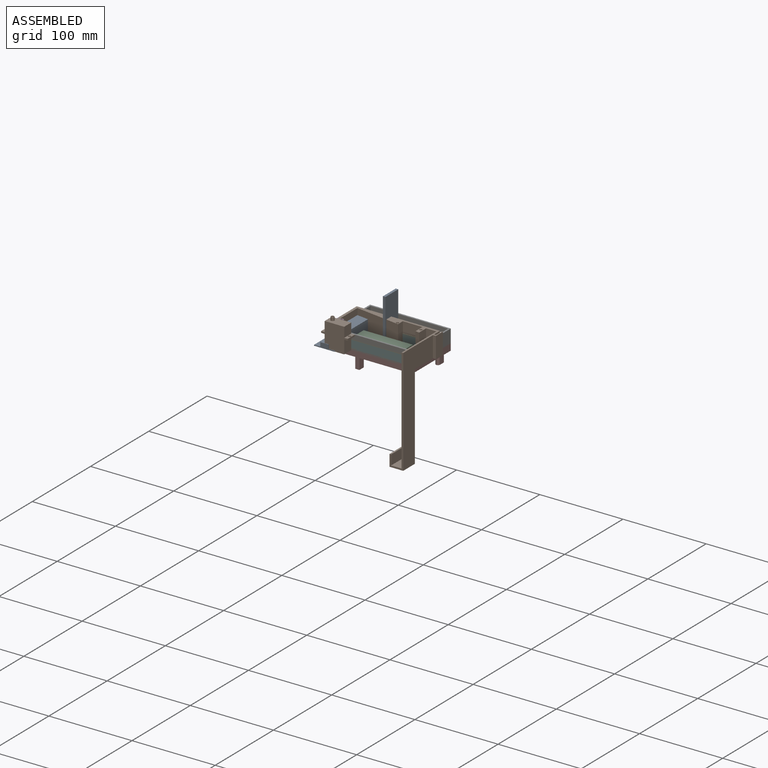
[diagram: assembled view]
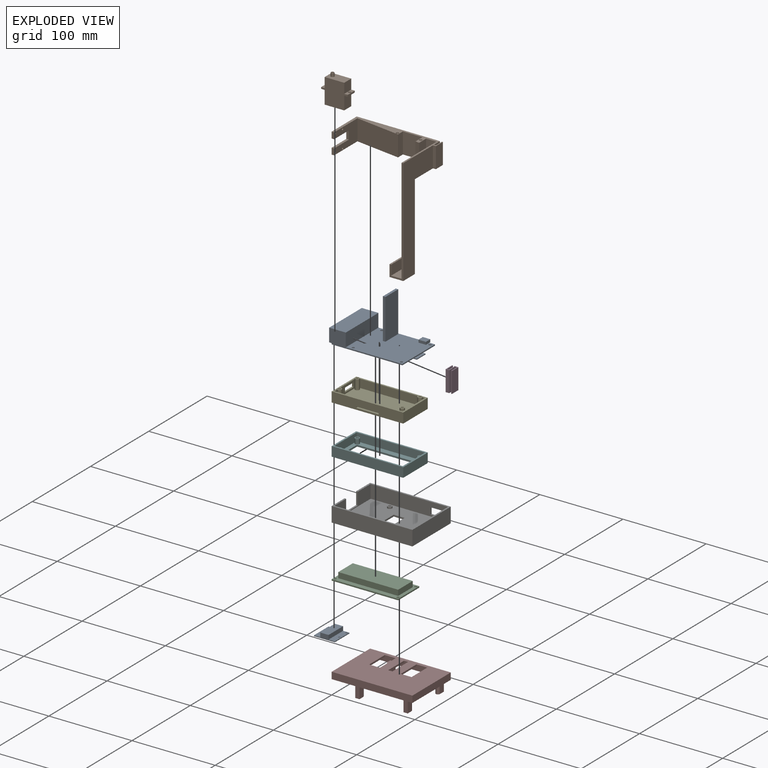
[diagram: exploded view]
GUIDED TOUR — FREECAD ASSEMBLY "housing"

This assembly has 10 components, labeled P0..P9 below (a component is one placed body or linked part; the same part can appear more than once), held together by 0 modeled joints plus 41 derived contact edges. A joint is a constraint between two components; its type names the relative motion it leaves free:
  CONTACT — a derived adjacency edge — the two components touch in the source model (clearance under 2% of the assembly's diagonal); it is measured from the geometry, not a modeled constraint.
Axis/direction vectors are unit vectors and 'through' points are millimeter coordinates, both in the assembly's world frame.

MATES
  1. CONTACT "contact_0_1": P0 <-> P1, contact direction (0.000, 0.000, 1.000) through (4.00, 13.00, 1.27) mm (derived from contact, not a modeled constraint)
  2. CONTACT "contact_0_3": P0 <-> P3, contact direction (0.000, 0.000, 1.000) through (8.51, 10.83, 0.00) mm (derived from contact, not a modeled constraint)
  3. CONTACT "contact_0_4": P0 <-> P4, contact direction (0.000, 0.000, 1.000) through (8.45, 8.73, 0.00) mm (derived from contact, not a modeled constraint)
  4. CONTACT "contact_0_5": P0 <-> P5, contact direction (0.000, 0.000, 1.000) through (8.28, 9.27, 0.00) mm (derived from contact, not a modeled constraint)
  5. CONTACT "contact_0_9": P0 <-> P9, contact direction (0.000, 0.000, 1.000) through (8.24, -3.73, 0.00) mm (derived from contact, not a modeled constraint)
  6. CONTACT "contact_1_2": P1 <-> P2, contact direction (0.000, 0.000, -1.000) through (0.00, 0.00, 0.00) mm (derived from contact, not a modeled constraint)
  7. CONTACT "contact_1_3": P1 <-> P3, contact direction (-0.807, -0.451, 0.381) through (0.00, 0.00, 0.00) mm (derived from contact, not a modeled constraint)
  8. CONTACT "contact_1_4": P1 <-> P4, contact direction (0.807, 0.451, -0.381) through (0.00, 0.00, 0.00) mm (derived from contact, not a modeled constraint)
  9. CONTACT "contact_1_5": P1 <-> P5, contact direction (0.807, 0.451, -0.381) through (0.00, 0.00, 0.00) mm (derived from contact, not a modeled constraint)
  10. CONTACT "contact_1_6": P1 <-> P6, contact direction (0.807, 0.451, -0.381) through (0.00, 0.00, 0.00) mm (derived from contact, not a modeled constraint)
  11. CONTACT "contact_1_7": P1 <-> P7, contact direction (0.807, 0.451, -0.381) through (0.00, 0.00, 0.00) mm (derived from contact, not a modeled constraint)
  12. CONTACT "contact_1_8": P1 <-> P8, contact direction (0.000, 0.000, -1.000) through (0.00, 0.00, 0.00) mm (derived from contact, not a modeled constraint)
  13. CONTACT "contact_1_9": P1 <-> P9, contact direction (-0.807, -0.451, 0.381) through (0.00, 0.00, 0.00) mm (derived from contact, not a modeled constraint)
  14. CONTACT "contact_2_3": P2 <-> P3, contact direction (-1.000, 0.000, 0.000) through (0.00, 0.00, 0.00) mm (derived from contact, not a modeled constraint)
  15. CONTACT "contact_2_4": P2 <-> P4, contact direction (0.180, 0.427, 0.886) through (0.00, 0.00, 0.00) mm (derived from contact, not a modeled constraint)
  16. CONTACT "contact_2_5": P2 <-> P5, contact direction (0.180, 0.427, 0.886) through (0.00, 0.00, 0.00) mm (derived from contact, not a modeled constraint)
  17. CONTACT "contact_2_6": P2 <-> P6, contact direction (0.000, 0.000, 1.000) through (0.00, 0.00, 0.00) mm (derived from contact, not a modeled constraint)
  18. CONTACT "contact_2_7": P2 <-> P7, contact direction (0.000, 0.000, -1.000) through (0.00, 0.00, 0.00) mm (derived from contact, not a modeled constraint)
  19. CONTACT "contact_2_8": P2 <-> P8, contact direction (0.000, 0.000, 1.000) through (0.00, 0.00, 0.00) mm (derived from contact, not a modeled constraint)
  20. CONTACT "contact_2_9": P2 <-> P9, contact direction (-0.807, -0.451, 0.381) through (0.00, 0.00, 0.00) mm (derived from contact, not a modeled constraint)
  21. CONTACT "contact_3_4": P3 <-> P4, contact direction (1.000, 0.000, 0.000) through (0.00, 0.00, 0.00) mm (derived from contact, not a modeled constraint)
  22. CONTACT "contact_3_5": P3 <-> P5, contact direction (1.000, 0.000, 0.000) through (0.00, 0.00, 0.00) mm (derived from contact, not a modeled constraint)
  23. CONTACT "contact_3_6": P3 <-> P6, contact direction (0.807, 0.451, -0.381) through (0.00, 0.00, 0.00) mm (derived from contact, not a modeled constraint)
  24. CONTACT "contact_3_7": P3 <-> P7, contact direction (0.000, 0.000, -1.000) through (0.00, 0.00, 0.00) mm (derived from contact, not a modeled constraint)
  25. CONTACT "contact_3_8": P3 <-> P8, contact direction (0.807, 0.451, -0.381) through (0.00, 0.00, 0.00) mm (derived from contact, not a modeled constraint)
  26. CONTACT "contact_3_9": P3 <-> P9, contact direction (0.000, -1.000, 0.000) through (0.00, 0.00, 0.00) mm (derived from contact, not a modeled constraint)
  27. CONTACT "contact_4_5": P4 <-> P5, contact direction (0.000, 0.000, -1.000) through (0.00, 42.20, 0.00) mm (derived from contact, not a modeled constraint)
  28. CONTACT "contact_4_6": P4 <-> P6, contact direction (0.000, 0.000, -1.000) through (0.00, 0.00, 0.00) mm (derived from contact, not a modeled constraint)
  29. CONTACT "contact_4_7": P4 <-> P7, contact direction (0.000, 0.000, -1.000) through (0.00, 0.00, 0.00) mm (derived from contact, not a modeled constraint)
  30. CONTACT "contact_4_8": P4 <-> P8, contact direction (0.000, 0.000, -1.000) through (0.00, 0.00, 0.00) mm (derived from contact, not a modeled constraint)
  31. CONTACT "contact_4_9": P4 <-> P9, contact direction (0.000, 0.000, 1.000) through (0.00, 0.00, 0.00) mm (derived from contact, not a modeled constraint)
  32. CONTACT "contact_5_6": P5 <-> P6, contact direction (0.807, 0.451, -0.381) through (0.00, 0.00, 0.00) mm (derived from contact, not a modeled constraint)
  33. CONTACT "contact_5_7": P5 <-> P7, contact direction (0.000, 0.000, -1.000) through (0.00, 0.00, 0.00) mm (derived from contact, not a modeled constraint)
  34. CONTACT "contact_5_8": P5 <-> P8, contact direction (0.000, 0.000, -1.000) through (0.00, 0.00, 0.00) mm (derived from contact, not a modeled constraint)
  35. CONTACT "contact_5_9": P5 <-> P9, contact direction (-1.000, 0.000, 0.000) through (0.00, 0.00, 0.00) mm (derived from contact, not a modeled constraint)
  36. CONTACT "contact_6_7": P6 <-> P7, contact direction (0.000, 0.000, -1.000) through (0.00, 0.00, 0.00) mm (derived from contact, not a modeled constraint)
  37. CONTACT "contact_6_8": P6 <-> P8, contact direction (0.000, 0.000, -1.000) through (0.00, 0.00, 0.00) mm (derived from contact, not a modeled constraint)
  38. CONTACT "contact_6_9": P6 <-> P9, contact direction (0.000, 0.000, 1.000) through (0.00, 0.00, 0.00) mm (derived from contact, not a modeled constraint)
  39. CONTACT "contact_7_8": P7 <-> P8, contact direction (0.000, 0.000, 1.000) through (0.00, 0.00, 0.00) mm (derived from contact, not a modeled constraint)
  40. CONTACT "contact_7_9": P7 <-> P9, contact direction (0.000, 0.000, 1.000) through (0.00, 0.00, 0.00) mm (derived from contact, not a modeled constraint)
  41. CONTACT "contact_8_9": P8 <-> P9, contact direction (-0.807, -0.451, 0.381) through (0.00, 0.00, 0.00) mm (derived from contact, not a modeled constraint)

ASSEMBLY ORDER
  1. P8 — the base component [order heuristic]
  2. P4 — core [order heuristic]
  3. P5 — core [order heuristic]
  4. P6 [order verified]
  5. P2 — core [order heuristic]
  6. P0 [order verified]
  7. P1 [order verified]
  8. P3 [order verified]
  9. P7 [order verified]
  10. P9 [order verified]
(P1, P3, P6, P7 verified with a relaxed clearance tolerance: the source model stores slight part interference there.)
Order-tag legend:
  [order verified] — this step's position reverses a verified removal order: the component was checked to insert without passing through the ones already placed.
  [order heuristic] — the first 4 components form the assembly's core: parts whose collision-free extraction could not be verified, listed in mate-graph order.

Of the 10 components, 10 carry a construction recipe — the FreeCAD feature program (sketches with constraints, then the solid features that consume them) that regenerates the part from scratch, quoted from this document or from the linked companion document it references; the rest are supplied as boundary geometry only. The tour below walks the components in assembly order: each is shown spotlighted twice — in the assembled view, then in the exploded view, where a leader line traces a displaced component back to its assembled socket (components that stay in place when exploded have no leader line; saturated green if recipe-attached, orange if geometry-only; every other component desaturated gray) — followed by its recipe or geometry summary and the mates that hold it.
NOTE — document 2 of 2 of this assembly tour. The two overview renders and the header above are repeated from document 1; the component sections below continue where the previous document stopped.
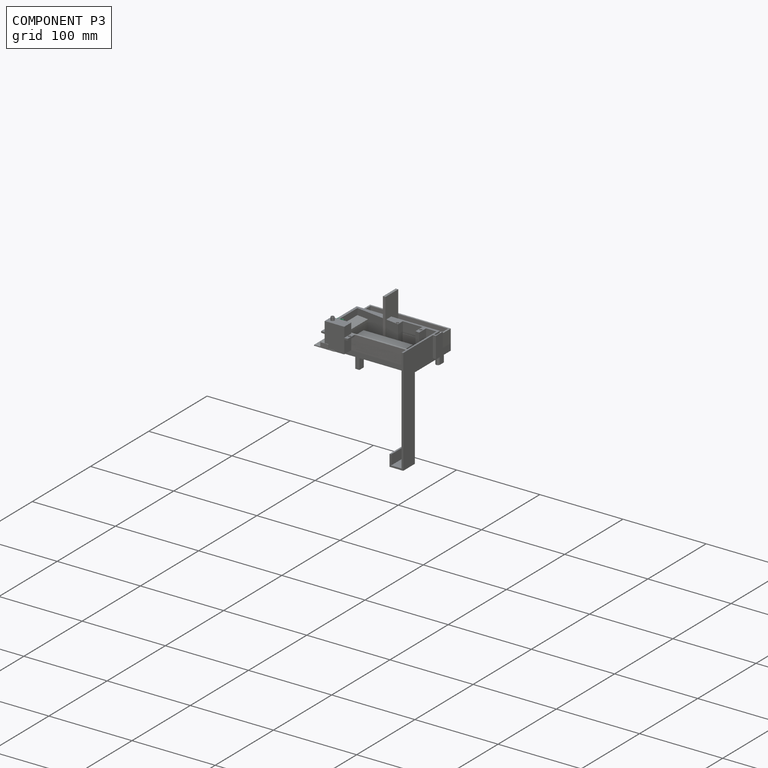
[diagram: component P3 — assembled]
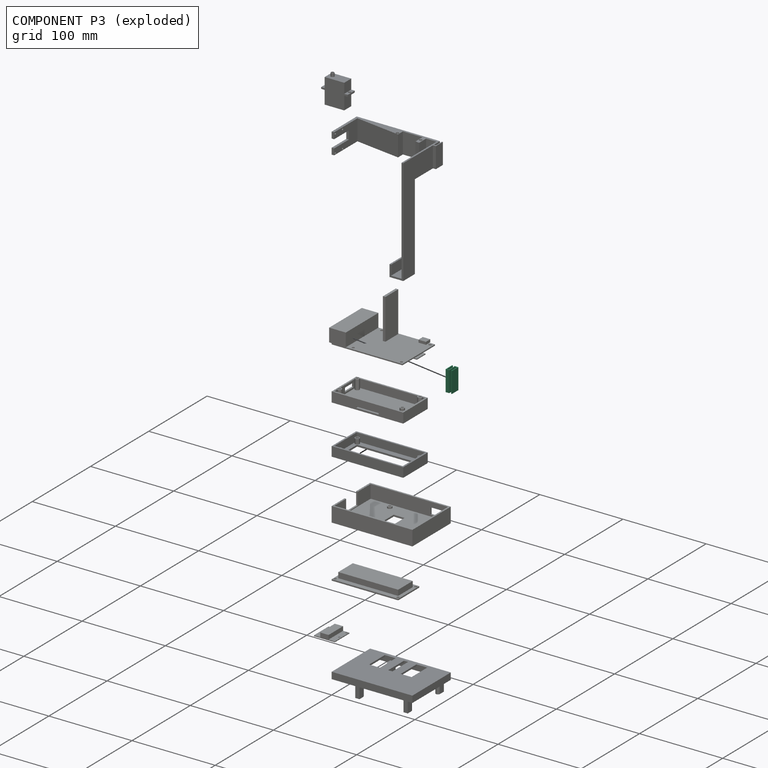
[diagram: component P3 — exploded]
COMPONENT P3 — recipe-attached ("DisplayClip", modeled in this document).
Held by: resting contact with P0 (derived edge); resting contact with P1 (derived edge); resting contact with P2 (derived edge); resting contact with P4 (derived edge); resting contact with P5 (derived edge); resting contact with P6 (derived edge); resting contact with P7 (derived edge); resting contact with P8 (derived edge); resting contact with P9 (derived edge).
Construction recipe (the document's own serialized feature program — sketch geometry with constraints, then the solid features built on it; lengths are millimeters unless a unit is written):

FEATURE [PartDesign::CoordinateSystem] LCS_0005
  AttacherType = Attacher::AttachEngine3D
  MapMode = 2
  Support = -> [X_Axis009]
FEATURE [Sketcher::SketchObject] Sketch025  label="ClipBaseSketch"
  FullyConstrained = true
  MapMode = 5
  Support = -> [XY_Plane009]
  sketch-geometry (14):
    g0: LineSegment StartX=0 StartY=0 StartZ=0 EndX=0 EndY=11 EndZ=0
    g1: LineSegment StartX=0 StartY=11 StartZ=0 EndX=1 EndY=11 EndZ=0
    g2: LineSegment StartX=1 StartY=11 StartZ=0 EndX=1 EndY=1 EndZ=0
    g3: LineSegment StartX=1 StartY=1 StartZ=0 EndX=3.3 EndY=1 EndZ=0
    g4: LineSegment StartX=3.3 StartY=1 StartZ=0 EndX=3.3 EndY=11 EndZ=0
    g5: LineSegment StartX=3.3 StartY=11 StartZ=0 EndX=7.6 EndY=11 EndZ=0
    g6: LineSegment StartX=7.6 StartY=11 StartZ=0 EndX=7.6 EndY=0 EndZ=0
    g7: LineSegment StartX=7.6 StartY=0 StartZ=0 EndX=6.6 EndY=0 EndZ=0
    g8: LineSegment StartX=6.6 StartY=0 StartZ=0 EndX=6.6 EndY=10 EndZ=0
    g9: LineSegment StartX=6.6 StartY=10 StartZ=0 EndX=4.3 EndY=10 EndZ=0
    g10: LineSegment StartX=4.3 StartY=10 StartZ=0 EndX=4.3 EndY=0 EndZ=0
    g11: LineSegment StartX=0 StartY=0 StartZ=0 EndX=4.3 EndY=0 EndZ=0
    g12: LineSegment StartX=4.3 StartY=10 StartZ=0 EndX=4.3 EndY=11 EndZ=0
    g13: LineSegment StartX=4.3 StartY=10 StartZ=0 EndX=3.3 EndY=10 EndZ=0
  constraints (41):
    c: Coincident(g0,g-1)
    c: PointOnObject(g0,g-2)
    c: Coincident(g1,g0)
    c: Horizontal(g1)
    c: Coincident(g2,g1)
    c: Vertical(g2)
    c: Coincident(g3,g2)
    c: Horizontal(g3)
    c: Coincident(g4,g3)
    c: Vertical(g4)
    c: Coincident(g5,g4)
    c: Horizontal(g5)
    c: Coincident(g6,g5)
    c: PointOnObject(g6,g-1)
    c: Vertical(g6)
    c: Coincident(g7,g6)
    c: PointOnObject(g7,g-1)
    c: Coincident(g8,g7)
    c: Vertical(g8)
    c: Coincident(g9,g8)
    c: Horizontal(g9)
    c: Coincident(g10,g9)
    c: PointOnObject(g10,g-1)
    c: Vertical(g10)
    c: Distance(g1) = 1
    c: Distance(g2) = 10
    c: Distance(g6) = 11
    c: Distance(g3) = 2.3
    c: Equal(g3,g9)
    c: Equal(g1,g7)
    c: Coincident(g11,g0)
    c: Coincident(g11,g10)
    c: Coincident(g12,g9)
    c: PointOnObject(g12,g5)
    c: Vertical(g12)
    c: Coincident(g13,g9)
    c: PointOnObject(g13,g4)
    c: Horizontal(g13)
    c: Equal(g12,g13)
    c: Equal(g1,g12)
    c: Equal(g2,g4)
FEATURE [PartDesign::Pad] Pad018  label="ClipBase"
  Direction = (1,1,1)
  Length = 25
  Length2 = 100
  Profile = -> Sketch025
  Type = 0
FEATURE [PartDesign::CoordinateSystem] DC_HousingSide
  AttacherType = Attacher::AttachEngine3D
  MapMode = 45
  Placement = pos=(3.3,1,12.5) rot=(0,0,1;0rad)
  Support = -> [Pad018]
FEATURE [PartDesign::CoordinateSystem] DC_DisplaySide
  AttacherType = Attacher::AttachEngine3D
  MapMode = 45
  Placement = pos=(4.3,10,12.5) rot=(0,0,1;0rad)
  Support = -> [Pad018]
FEATURE [PartDesign::Body] DisplayClip
  Group = -> [LCS_0005,Sketch025,Pad018,DC_HousingSide,DC_DisplaySide]
  Origin = -> Origin009
  Tip = -> Pad018
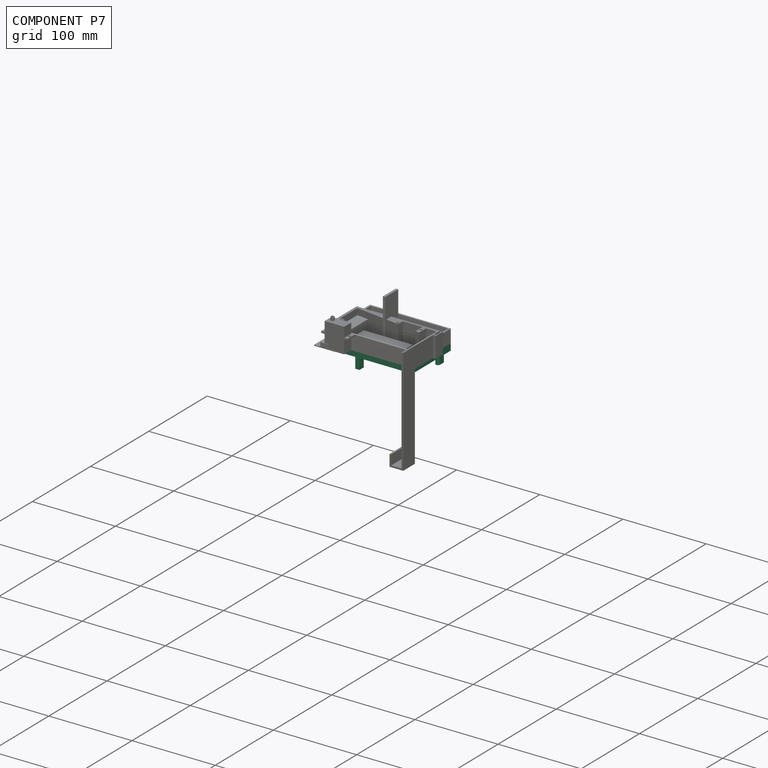
[diagram: component P7 — assembled]
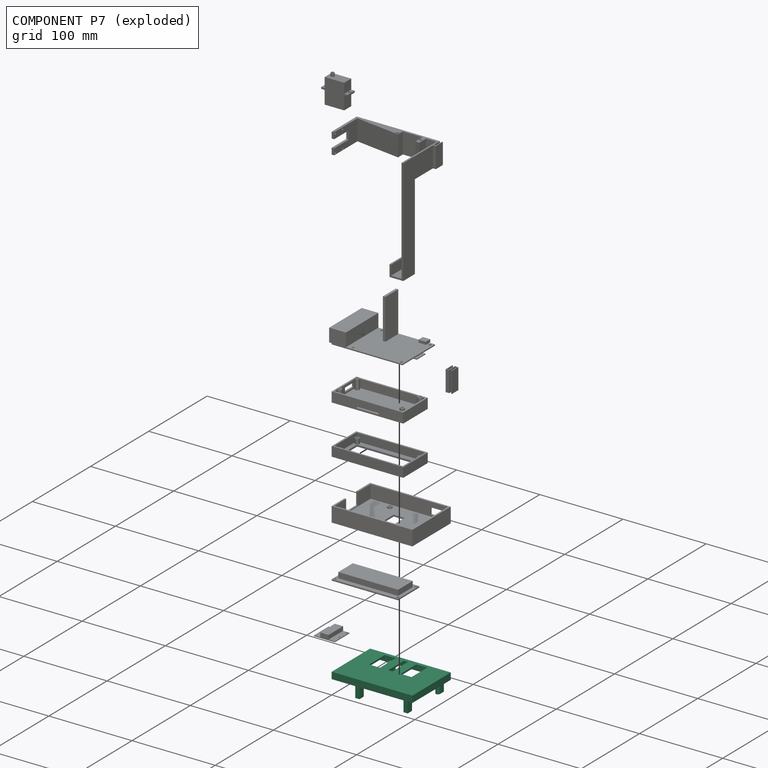
[diagram: component P7 — exploded]
COMPONENT P7 — recipe-attached ("RaspiHousingTop", modeled in this document).
Held by: resting contact with P1 (derived edge); resting contact with P2 (derived edge); resting contact with P3 (derived edge); resting contact with P4 (derived edge); resting contact with P5 (derived edge); resting contact with P6 (derived edge); resting contact with P8 (derived edge); resting contact with P9 (derived edge).
Construction recipe (the document's own serialized feature program — sketch geometry with constraints, then the solid features built on it; lengths are millimeters unless a unit is written):

FEATURE [PartDesign::CoordinateSystem] LCS_0001
  AttacherType = Attacher::AttachEngine3D
  MapMode = 2
  Support = -> [X_Axis005]
FEATURE [Sketcher::SketchObject] Sketch014  label="HT_BaseCutoutsSketch"
  AttachmentOffset = pos=(0,0,2) rot=(0,0,1;0rad)
  FullyConstrained = false
  MapMode = 5
  Placement = pos=(0,0,2) rot=(0,0,1;0rad)
  Support = -> [XY_Plane005]
  expr: Constraints[79] = <<RaspiProps>>.HoleDistanceTop
  expr: Constraints[42] = <<RaspiProps>>.PortsMargin + 1mm
  expr: Constraints[64] = <<RaspiProps>>.CamCableWidth + 4mm
  expr: Constraints[80] = <<RaspiProps>>.HoleDistanceSide
  expr: Constraints[74] = <<RaspiProps>>.CamCableOffsetY - 2mm
  expr: Constraints[18] = <<RaspiProps>>.Height
  expr: Constraints[73] = <<RaspiProps>>.CamCableOffsetX
  expr: Constraints[65] = <<RaspiProps>>.CamCableHeight + 4mm
  expr: Constraints[41] = <<RaspiProps>>.SdcardMargin + 1mm
  expr: Constraints[17] = <<RaspiProps>>.Width
  sketch-geometry (38):
    g0: LineSegment StartX=0 StartY=0 StartZ=0 EndX=97 EndY=0 EndZ=0
    g1: LineSegment StartX=97 StartY=0 StartZ=0 EndX=97 EndY=66 EndZ=0
    g2: LineSegment StartX=97 StartY=66 StartZ=0 EndX=0 EndY=66 EndZ=0
    g3: LineSegment StartX=0 StartY=66 StartZ=0 EndX=0 EndY=0 EndZ=0
    g4: LineSegment StartX=6 StartY=61 StartZ=0 EndX=91 EndY=61 EndZ=0
    g5: LineSegment StartX=91 StartY=61 StartZ=0 EndX=91 EndY=5 EndZ=0
    g6: LineSegment StartX=91 StartY=5 StartZ=0 EndX=6 EndY=5 EndZ=0
    g7: LineSegment StartX=6 StartY=5 StartZ=0 EndX=6 EndY=61 EndZ=0
    g8: LineSegment StartX=2 StartY=64 StartZ=0 EndX=95 EndY=64 EndZ=0
    g9: LineSegment StartX=95 StartY=64 StartZ=0 EndX=95 EndY=2 EndZ=0
    g10: LineSegment StartX=95 StartY=2 StartZ=0 EndX=2 EndY=2 EndZ=0
    g11: LineSegment StartX=2 StartY=2 StartZ=0 EndX=2 EndY=64 EndZ=0
    g12: LineSegment StartX=91 StartY=61 StartZ=0 EndX=95 EndY=61 EndZ=0
    g13: LineSegment StartX=91 StartY=61 StartZ=0 EndX=91 EndY=64 EndZ=0
    g14: LineSegment StartX=6 StartY=5 StartZ=0 EndX=6 EndY=2 EndZ=0
    g15: LineSegment StartX=6 StartY=5 StartZ=0 EndX=2 EndY=5 EndZ=0
    g16: LineSegment StartX=2 StartY=64 StartZ=0 EndX=2 EndY=66 EndZ=0
    g17: LineSegment StartX=2 StartY=64 StartZ=0 EndX=0 EndY=64 EndZ=0
    g18: LineSegment StartX=95 StartY=2 StartZ=0 EndX=97 EndY=2 EndZ=0
    g19: LineSegment StartX=95 StartY=2 StartZ=0 EndX=95 EndY=0 EndZ=0
    g20: LineSegment StartX=48.5 StartY=62 StartZ=0 EndX=48.5 EndY=35 EndZ=0
    g21: LineSegment StartX=48.5 StartY=35 StartZ=0 EndX=43.5 EndY=35 EndZ=0
    g22: LineSegment StartX=43.5 StartY=35 StartZ=0 EndX=43.5 EndY=62 EndZ=0
    g23: GeomPoint X=46 Y=62 Z=0
    g24: LineSegment StartX=43.5 StartY=62 StartZ=0 EndX=46 EndY=62 EndZ=0
    g25: LineSegment StartX=46 StartY=62 StartZ=0 EndX=48.5 EndY=62 EndZ=0
    g26: LineSegment StartX=87.5 StartY=57.5 StartZ=0 EndX=91 EndY=57.5 EndZ=0
    g27: LineSegment StartX=87.5 StartY=57.5 StartZ=0 EndX=87.5 EndY=61 EndZ=0
    g28: LineSegment StartX=33.5 StartY=62 StartZ=0 EndX=20.5 EndY=62 EndZ=0
    g29: LineSegment StartX=20.5 StartY=62 StartZ=0 EndX=20.5 EndY=35 EndZ=0
    g30: LineSegment StartX=20.5 StartY=35 StartZ=0 EndX=33.5 EndY=35 EndZ=0
    g31: LineSegment StartX=33.5 StartY=35 StartZ=0 EndX=33.5 EndY=62 EndZ=0
    g32: LineSegment StartX=33.5 StartY=35 StartZ=0 EndX=43.5 EndY=35 EndZ=0
    g33: LineSegment StartX=58.5 StartY=62 StartZ=0 EndX=71.5 EndY=62 EndZ=0
    g34: LineSegment StartX=71.5 StartY=62 StartZ=0 EndX=71.5 EndY=35 EndZ=0
    g35: LineSegment StartX=71.5 StartY=35 StartZ=0 EndX=58.5 EndY=35 EndZ=0
    g36: LineSegment StartX=58.5 StartY=35 StartZ=0 EndX=58.5 EndY=62 EndZ=0
    g37: LineSegment StartX=48.5 StartY=35 StartZ=0 EndX=58.5 EndY=35 EndZ=0
  constraints (109):
    c: Coincident(g0,g1)
    c: Coincident(g1,g2)
    c: Coincident(g2,g3)
    c: Coincident(g3,g0)
    c: Horizontal(g0)
    c: Horizontal(g2)
    c: Vertical(g1)
    c: Vertical(g3)
    c: Coincident(g0,g-1)
    c: Coincident(g4,g5)
    c: Coincident(g5,g6)
    c: Coincident(g6,g7)
    c: Coincident(g7,g4)
    c: Horizontal(g4)
    c: Horizontal(g6)
    c: Vertical(g5)
    c: Vertical(g7)
    c: Distance(g4) = 85
    c: Distance(g7) = 56
    c: Coincident(g8,g9)
    c: Coincident(g9,g10)
    c: Coincident(g10,g11)
    c: Coincident(g11,g8)
    c: Horizontal(g8)
    c: Horizontal(g10)
    c: Vertical(g9)
    c: Vertical(g11)
    c: Coincident(g12,g4)
    c: PointOnObject(g12,g9)
    c: Horizontal(g12)
    c: Coincident(g13,g4)
    c: PointOnObject(g13,g8)
    c: Vertical(g13)
    c: Coincident(g14,g6)
    c: PointOnObject(g14,g10)
    c: Vertical(g14)
    c: PointOnObject(g15,g11)
    c: Horizontal(g15)
    c: Coincident(g15,g6)
    c: Equal(g13,g14)
    c: Distance(g13) = 3
    c: Distance(g12) = 4
    c: Distance(g15) = 4
    c: Coincident(g16,g8)
    c: PointOnObject(g16,g2)
    c: Vertical(g16)
    c: Coincident(g17,g8)
    c: PointOnObject(g17,g3)
    c: Horizontal(g17)
    c: Coincident(g18,g9)
    c: PointOnObject(g18,g1)
    c: Horizontal(g18)
    c: Coincident(g19,g9)
    c: PointOnObject(g19,g0)
    c: Vertical(g19)
    c: Equal(g17,g16)
    c: Equal(g16,g18)
    c: Equal(g18,g19)
    c: Distance(g17) = 2
    c: Coincident(g20,g21)
    c: Coincident(g21,g22)
    c: Horizontal(g21)
    c: Vertical(g20)
    c: Vertical(g22)
    c: Distance(g20) = 27
    c: Distance(g21) = 5
    c: Coincident(g24,g22)
    c: Coincident(g24,g23)
    c: Coincident(g25,g24)
    c: Coincident(g25,g20)
    c: Horizontal(g24)
    c: Horizontal(g25)
    c: Equal(g24,g25)
    c: DistanceX(g24,g4) = 45
    c: DistanceY(g22,g4) = -1
    c: PointOnObject(g26,g5)
    c: Horizontal(g26)
    c: PointOnObject(g27,g4)
    c: Vertical(g27)
    c: Distance(g26) = 3.5
    c: Distance(g27) = 3.5
    c: Coincident(g28,g29)
    c: Coincident(g29,g30)
    c: Coincident(g30,g31)
    c: Coincident(g31,g28)
    c: Horizontal(g28)
    c: Horizontal(g30)
    c: Vertical(g29)
    c: Vertical(g31)
    c: Distance(g28) = 13
    c: Distance(g31) = 27
    c: Coincident(g32,g30)
    c: Coincident(g32,g21)
    c: Horizontal(g32)
    c: Distance(g32) = 10
    c: Coincident(g33,g34)
    c: Coincident(g34,g35)
    c: Coincident(g35,g36)
    c: Coincident(g36,g33)
    c: Horizontal(g33)
    c: Horizontal(g35)
    c: Vertical(g34)
    c: Vertical(g36)
    c: Distance(g33) = 13
    c: Distance(g36) = 27
    c: Coincident(g37,g20)
    c: Coincident(g37,g35)
    c: Horizontal(g37)
    c: Distance(g37) = 10
FEATURE [Sketcher::SketchObject] Sketch015  label="HT_WallsSketch"
  FullyConstrained = true
  MapMode = 5
  Support = -> [XY_Plane005]
  expr: Constraints[8] = <<RaspiProps>>.Width + <<RaspiProps>>.PortsMargin + <<RaspiProps>>.SdcardMargin + 2mm
  expr: Constraints[9] = <<RaspiProps>>.Height + 6mm
  sketch-geometry (12):
    g0: LineSegment StartX=2 StartY=64 StartZ=0 EndX=95 EndY=64 EndZ=0
    g1: LineSegment StartX=95 StartY=64 StartZ=0 EndX=95 EndY=2 EndZ=0
    g2: LineSegment StartX=95 StartY=2 StartZ=0 EndX=2 EndY=2 EndZ=0
    g3: LineSegment StartX=2 StartY=2 StartZ=0 EndX=2 EndY=64 EndZ=0
    g4: LineSegment StartX=0 StartY=0 StartZ=0 EndX=97 EndY=0 EndZ=0
    g5: LineSegment StartX=97 StartY=0 StartZ=0 EndX=97 EndY=66 EndZ=0
    g6: LineSegment StartX=97 StartY=66 StartZ=0 EndX=0 EndY=66 EndZ=0
    g7: LineSegment StartX=0 StartY=66 StartZ=0 EndX=0 EndY=0 EndZ=0
    g8: LineSegment StartX=2 StartY=64 StartZ=0 EndX=2 EndY=66 EndZ=0
    g9: LineSegment StartX=2 StartY=64 StartZ=0 EndX=0 EndY=64 EndZ=0
    g10: LineSegment StartX=95 StartY=2 StartZ=0 EndX=97 EndY=2 EndZ=0
    g11: LineSegment StartX=95 StartY=2 StartZ=0 EndX=95 EndY=0 EndZ=0
  constraints (35):
    c: Coincident(g0,g1)
    c: Coincident(g1,g2)
    c: Coincident(g2,g3)
    c: Coincident(g3,g0)
    c: Horizontal(g0)
    c: Horizontal(g2)
    c: Vertical(g1)
    c: Vertical(g3)
    c: Distance(g0) = 93
    c: Distance(g1) = 62
    c: Coincident(g4,g5)
    c: Coincident(g5,g6)
    c: Coincident(g6,g7)
    c: Coincident(g7,g4)
    c: Horizontal(g4)
    c: Horizontal(g6)
    c: Vertical(g5)
    c: Vertical(g7)
    c: Coincident(g4,g-1)
    c: Coincident(g8,g0)
    c: PointOnObject(g8,g6)
    c: Vertical(g8)
    c: Coincident(g9,g0)
    c: PointOnObject(g9,g7)
    c: Horizontal(g9)
    c: Coincident(g10,g1)
    c: PointOnObject(g10,g5)
    c: Horizontal(g10)
    c: Coincident(g11,g1)
    c: PointOnObject(g11,g4)
    c: Vertical(g11)
    c: Equal(g11,g10)
    c: Equal(g10,g8)
    c: Equal(g8,g9)
    c: Distance(g8) = 2
FEATURE [Sketcher::SketchObject] Sketch016  label="HT_HoleSpacersSketch"
  FullyConstrained = false
  MapMode = 5
  Support = -> [XY_Plane005]
  expr: Constraints[23] = <<RaspiProps>>.HoleDistanceSide
  expr: Constraints[28] = <<RaspiProps>>.HoleRadius - 0.2mm
  expr: Constraints[21] = <<RaspiProps>>.Height - <<RaspiProps>>.HoleDistanceSide * 2
  expr: Constraints[20] = <<RaspiProps>>.Width - <<RaspiProps>>.HoleDistanceBottom - <<RaspiProps>>.HoleDistanceTop
  expr: Constraints[11] = 5mm
  expr: Constraints[10] = <<RaspiProps>>.PortsMargin + 3mm
  expr: Constraints[22] = <<RaspiProps>>.HoleDistanceTop
  expr: Constraints[9] = <<RaspiProps>>.Height
  expr: Constraints[8] = <<RaspiProps>>.Width
  sketch-geometry (46):
    g0: LineSegment StartX=6 StartY=5 StartZ=0 EndX=91 EndY=5 EndZ=0
    g1: LineSegment StartX=91 StartY=5 StartZ=0 EndX=91 EndY=61 EndZ=0
    g2: LineSegment StartX=91 StartY=61 StartZ=0 EndX=6 EndY=61 EndZ=0
    g3: LineSegment StartX=6 StartY=61 StartZ=0 EndX=6 EndY=5 EndZ=0
    g4: LineSegment StartX=29.5 StartY=57.5 StartZ=0 EndX=87.5 EndY=57.5 EndZ=0
    g5: LineSegment StartX=87.5 StartY=57.5 StartZ=0 EndX=87.5 EndY=8.5 EndZ=0
    g6: LineSegment StartX=87.5 StartY=8.5 StartZ=0 EndX=29.5 EndY=8.5 EndZ=0
    g7: LineSegment StartX=29.5 StartY=8.5 StartZ=0 EndX=29.5 EndY=57.5 EndZ=0
    g8: Circle CenterX=29.5 CenterY=57.5 CenterZ=0 NormalX=0 NormalY=0 NormalZ=1 AngleXU=0 Radius=1.3
    g9: Circle CenterX=87.5 CenterY=57.5 CenterZ=0 NormalX=0 NormalY=0 NormalZ=1 AngleXU=0 Radius=1.3
    g10: Circle CenterX=87.5 CenterY=8.5 CenterZ=0 NormalX=0 NormalY=0 NormalZ=1 AngleXU=0 Radius=1.3
    g11: Circle CenterX=29.5 CenterY=8.5 CenterZ=0 NormalX=0 NormalY=0 NormalZ=1 AngleXU=0 Radius=1.3
    g12: Circle CenterX=29.5 CenterY=57.5 CenterZ=0 NormalX=0 NormalY=0 NormalZ=1 AngleXU=0 Radius=2.5
    g13: Circle CenterX=87.5 CenterY=57.5 CenterZ=0 NormalX=0 NormalY=0 NormalZ=1 AngleXU=0 Radius=2.5
    g14: Circle CenterX=29.5 CenterY=8.5 CenterZ=0 NormalX=0 NormalY=0 NormalZ=1 AngleXU=0 Radius=2.5
    g15: Circle CenterX=87.5 CenterY=8.5 CenterZ=0 NormalX=0 NormalY=0 NormalZ=1 AngleXU=0 Radius=2.5
    g16: LineSegment StartX=28.833 StartY=56.3842 StartZ=0 EndX=28.2172 EndY=55.3542 EndZ=0
    g17: LineSegment StartX=86.9047 StartY=56.3443 StartZ=0 EndX=86.3552 EndY=55.2775 EndZ=0
    g18: LineSegment StartX=28.6717 StartY=7.49802 StartZ=0 EndX=27.9072 EndY=6.57312 EndZ=0
    g19: LineSegment StartX=86.5028 StartY=7.66597 StartZ=0 EndX=85.5823 EndY=6.89609 EndZ=0
    g20: LineSegment StartX=0 StartY=64 StartZ=0 EndX=105.7 EndY=64 EndZ=0
    g21: LineSegment StartX=27 StartY=57.5 StartZ=0 EndX=27 EndY=64 EndZ=0
    g22: LineSegment StartX=32 StartY=57.5 StartZ=0 EndX=32 EndY=64 EndZ=0
    g23: LineSegment StartX=29.5 StartY=57.5 StartZ=0 EndX=27 EndY=57.5 EndZ=0
    g24: LineSegment StartX=29.5 StartY=57.5 StartZ=0 EndX=32 EndY=57.5 EndZ=0
    g25: ArcOfCircle CenterX=29.5 CenterY=57.5 CenterZ=0 NormalX=0 NormalY=0 NormalZ=1 AngleXU=0 Radius=2.5 StartAngle=3.14159 EndAngle=6.28319
    g26: LineSegment StartX=27 StartY=64 StartZ=0 EndX=32 EndY=64 EndZ=0
    g27: LineSegment StartX=87.5 StartY=57.5 StartZ=0 EndX=85 EndY=57.5 EndZ=0
    g28: LineSegment StartX=87.5 StartY=57.5 StartZ=0 EndX=90 EndY=57.5 EndZ=0
    g29: LineSegment StartX=85 StartY=57.5 StartZ=0 EndX=85 EndY=64 EndZ=0
    g30: LineSegment StartX=90 StartY=57.5 StartZ=0 EndX=90 EndY=64 EndZ=0
    g31: LineSegment StartX=90 StartY=64 StartZ=0 EndX=85 EndY=64 EndZ=0
    g32: ArcOfCircle CenterX=87.5 CenterY=57.5 CenterZ=0 NormalX=0 NormalY=0 NormalZ=1 AngleXU=0 Radius=2.5 StartAngle=3.14159 EndAngle=6.28319
    g33: LineSegment StartX=29.5 StartY=8.5 StartZ=0 EndX=32 EndY=8.5 EndZ=0
    g34: LineSegment StartX=29.5 StartY=8.5 StartZ=0 EndX=27 EndY=8.5 EndZ=0
    g35: LineSegment StartX=87.5 StartY=8.5 StartZ=0 EndX=85 EndY=8.5 EndZ=0
    g36: LineSegment StartX=87.5 StartY=8.5 StartZ=0 EndX=90 EndY=8.5 EndZ=0
    g37: ArcOfCircle CenterX=87.5 CenterY=8.5 CenterZ=0 NormalX=0 NormalY=0 NormalZ=1 AngleXU=0 Radius=2.5 StartAngle=3e-16 EndAngle=3.14159
    g38: LineSegment StartX=0 StartY=2 StartZ=0 EndX=132.04 EndY=2 EndZ=0
    g39: LineSegment StartX=27 StartY=8.5 StartZ=0 EndX=27 EndY=2 EndZ=0
    g40: LineSegment StartX=32 StartY=8.5 StartZ=0 EndX=32 EndY=2 EndZ=0
    g41: LineSegment StartX=32 StartY=2 StartZ=0 EndX=27 EndY=2 EndZ=0
    g42: LineSegment StartX=85 StartY=8.5 StartZ=0 EndX=85 EndY=2 EndZ=0
    g43: LineSegment StartX=90 StartY=8.5 StartZ=0 EndX=90 EndY=2 EndZ=0
    g44: LineSegment StartX=85 StartY=2 StartZ=0 EndX=90 EndY=2 EndZ=0
    g45: ArcOfCircle CenterX=29.5 CenterY=8.5 CenterZ=0 NormalX=0 NormalY=0 NormalZ=1 AngleXU=0 Radius=2.5 StartAngle=0 EndAngle=3.14159
  constraints (123):
    c: Coincident(g0,g1)
    c: Coincident(g1,g2)
    c: Coincident(g2,g3)
    c: Coincident(g3,g0)
    c: Horizontal(g0)
    c: Horizontal(g2)
    c: Vertical(g1)
    c: Vertical(g3)
    c: Distance(g2) = 85
    c: Distance(g1) = 56
    c: DistanceX(g-1,g0) = 6
    c: DistanceY(g-1,g0) = 5
    c: Coincident(g4,g5)
    c: Coincident(g5,g6)
    c: Coincident(g6,g7)
    c: Coincident(g7,g4)
    c: Horizontal(g4)
    c: Horizontal(g6)
    c: Vertical(g5)
    c: Vertical(g7)
    c: Distance(g4) = 58
    c: Distance(g5) = 49
    c: DistanceX(g5,g0) = 3.5
    c: DistanceY(g0,g5) = 3.5
    c: Coincident(g8,g4)
    c: Coincident(g9,g4)
    c: Coincident(g10,g5)
    c: Coincident(g11,g6)
    c: Radius(g8) = 1.3
    c: Equal(g8,g11)
    c: Equal(g8,g9)
    c: Equal(g8,g10)
    c: Coincident(g12,g8)
    c: Coincident(g13,g9)
    c: Coincident(g14,g11)
    c: Coincident(g15,g10)
    c: PointOnObject(g16,g8)
    c: PointOnObject(g16,g12)
    c: PointOnObject(g17,g9)
    c: PointOnObject(g17,g13)
    c: PointOnObject(g18,g11)
    c: PointOnObject(g18,g14)
    c: PointOnObject(g19,g10)
    c: PointOnObject(g19,g15)
    c: Perpendicular(g10,g19)
    c: Perpendicular(g11,g18)
    c: Perpendicular(g8,g16)
    c: Perpendicular(g9,g17)
    c: Equal(g19,g17)
    c: Equal(g17,g16)
    c: Equal(g16,g18)
    c: Distance(g16) = 1.2
    c: PointOnObject(g20,g-2)
    c: Horizontal(g20)
    c: DistanceY(g2,g20) = 3
    c: Distance(g20) = 105.7
    c: PointOnObject(g21,g12)
    c: PointOnObject(g21,g20)
    c: Vertical(g21)
    c: PointOnObject(g22,g20)
    c: Vertical(g22)
    c: Coincident(g23,g8)
    c: Coincident(g23,g21)
    c: Horizontal(g23)
    c: Coincident(g24,g8)
    c: Coincident(g24,g22)
    c: Coincident(g25,g8)
    c: Coincident(g25,g21)
    c: Coincident(g25,g22)
    c: Horizontal(g24)
    c: Coincident(g26,g21)
    c: Coincident(g26,g22)
    c: Coincident(g27,g9)
    c: PointOnObject(g27,g13)
    c: Coincident(g28,g9)
    c: Horizontal(g27)
    c: Coincident(g29,g27)
    c: PointOnObject(g29,g20)
    c: Vertical(g29)
    c: Coincident(g30,g28)
    c: PointOnObject(g30,g20)
    c: Vertical(g30)
    c: Coincident(g31,g30)
    c: Coincident(g31,g29)
    c: Coincident(g32,g9)
    c: Coincident(g32,g29)
    c: Coincident(g32,g30)
    c: Horizontal(g28)
    c: Coincident(g33,g11)
    c: PointOnObject(g33,g14)
    c: Coincident(g34,g11)
    c: Horizontal(g34)
    c: Horizontal(g33)
    c: Coincident(g35,g10)
    c: PointOnObject(g35,g15)
    c: Coincident(g36,g10)
    c: Horizontal(g35)
    c: Horizontal(g36)
    c: Coincident(g37,g10)
    c: PointOnObject(g38,g-2)
    c: Horizontal(g38)
    c: DistanceY(g-1,g38) = 2
    c: PointOnObject(g39,g38)
    c: Vertical(g39)
    c: PointOnObject(g40,g38)
    c: Vertical(g40)
    c: Coincident(g41,g40)
    c: Coincident(g41,g39)
    c: Coincident(g37,g36)
    c: Coincident(g42,g37)
    c: PointOnObject(g42,g38)
    c: Vertical(g42)
    c: Coincident(g43,g37)
    c: PointOnObject(g43,g38)
    c: Vertical(g43)
    c: Coincident(g44,g42)
    c: Coincident(g44,g43)
    c: Coincident(g37,g35)
    c: Coincident(g45,g11)
    c: Coincident(g45,g39)
    c: Coincident(g45,g40)
    c: Coincident(g39,g34)
    c: Coincident(g40,g33)
FEATURE [PartDesign::CoordinateSystem] HB_TopRightScrewHole001  label="HT_TopRightScrewHole"
  AttacherType = Attacher::AttachEngine3D
  AttachmentOffset = pos=(0,0,-20) rot=(0,0,1;0rad)
  MapMode = 11
  Placement = pos=(87.5,57.5,-20) rot=(0,0,1;1.5708rad)
  Support = -> [Sketch016]
  expr: .AttachmentOffset.Base.z = -<<HT_HoleSpacers>>.Length
FEATURE [PartDesign::AdditiveBox] Box  label="HT_Base"
  AttacherType = Attacher::AttachEngine3D
  Height = 2
  Length = 97
  Width = 66
  expr: Length = <<RaspiProps>>.Width + <<RaspiProps>>.PortsMargin + <<RaspiProps>>.SdcardMargin + 6mm
  expr: Width = <<RaspiProps>>.Height + 10mm
FEATURE [PartDesign::Pad] Pad012  label="HT_Walls"
  BaseFeature = -> Box
  Direction = (1,1,1)
  Length = 6
  Length2 = 100
  Profile = -> Sketch015
  Reversed = true
  Type = 0
FEATURE [PartDesign::Pad] Pad013  label="HT_HoleSpacers"
  BaseFeature = -> Pad012
  Direction = (1,1,1)
  Length = 20
  Length2 = 100
  Profile = -> Sketch016
  Reversed = true
  Type = 0
FEATURE [PartDesign::Pocket] Pocket004  label="HT_BaseCutouts"
  BaseFeature = -> Pad013
  Length = 4
  Length2 = 100
  Profile = -> Sketch014
  Type = 0
FEATURE [PartDesign::CoordinateSystem] HT_ArmClipInside
  AttacherType = Attacher::AttachEngine3D
  MapMode = 45
  Placement = pos=(33.5,48.5,2) rot=(0,0.707107,0.707107;3.14159rad)
  Support = -> [Pocket004]
FEATURE [PartDesign::CoordinateSystem] HT_DisplayClipInside
  AttacherType = Attacher::AttachEngine3D
  MapMode = 45
  Placement = pos=(58.5,48.5,2) rot=(0,0.707107,0.707107;3.14159rad)
  Support = -> [Pocket004]
FEATURE [PartDesign::Body] HousingTop  label="RaspiHousingTop"
  Group = -> [Box,LCS_0001,Sketch014,Sketch015,Pad012,Sketch016,Pad013,Pocket004,HB_TopRightScrewHole001,HT_ArmClipInside,HT_DisplayClipInside]
  Origin = -> Origin005
  Tip = -> Pocket004
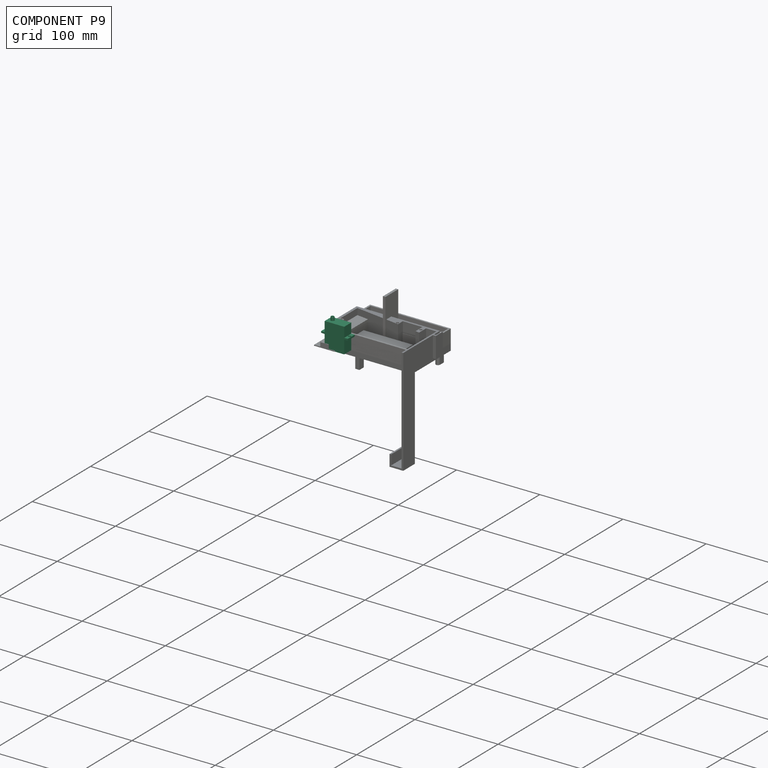
[diagram: component P9 — assembled]
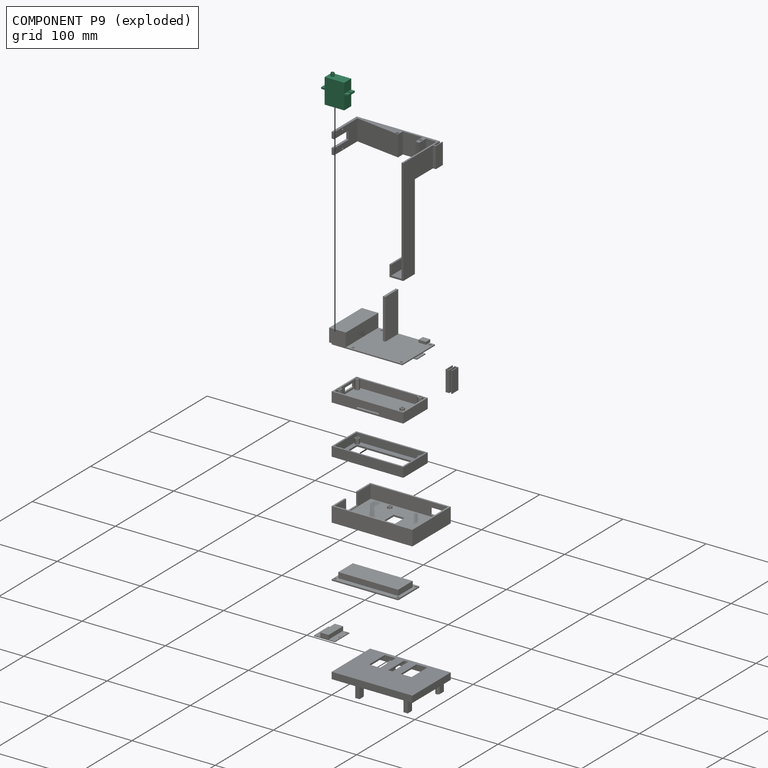
[diagram: component P9 — exploded]
COMPONENT P9 — recipe-attached ("Servo", modeled in this document).
Held by: resting contact with P0 (derived edge); resting contact with P1 (derived edge); resting contact with P2 (derived edge); resting contact with P3 (derived edge); resting contact with P4 (derived edge); resting contact with P5 (derived edge); resting contact with P6 (derived edge); resting contact with P7 (derived edge); resting contact with P8 (derived edge).
Construction recipe (the document's own serialized feature program — sketch geometry with constraints, then the solid features built on it; lengths are millimeters unless a unit is written):

FEATURE [PartDesign::CoordinateSystem] LCS_0006
  AttacherType = Attacher::AttachEngine3D
  MapMode = 2
  Support = -> [X_Axis010]
FEATURE [Sketcher::SketchObject] Sketch027  label="ServBaseSketch"
  FullyConstrained = true
  MapMode = 5
  Placement = pos=(0,0,0) rot=(1,0,0;1.5708rad)
  Support = -> [XZ_Plane010]
  expr: Constraints[27] = <<ServoProps>>.FlapWidth
  expr: Constraints[30] = <<ServoProps>>.FlapZ
  expr: Constraints[31] = <<ServoProps>>.Z
  expr: Constraints[32] = <<ServoProps>>.FlapUdersideDistanceToBottom
  expr: Constraints[33] = <<ServoProps>>.X
  sketch-geometry (12):
    g0: LineSegment StartX=0 StartY=0 StartZ=0 EndX=23.5 EndY=0 EndZ=0
    g1: LineSegment StartX=23.5 StartY=0 StartZ=0 EndX=23.5 EndY=16 EndZ=0
    g2: LineSegment StartX=23.5 StartY=16 StartZ=0 EndX=27.75 EndY=16 EndZ=0
    g3: LineSegment StartX=27.75 StartY=16 StartZ=0 EndX=27.75 EndY=18 EndZ=0
    g4: LineSegment StartX=27.75 StartY=18 StartZ=0 EndX=23.5 EndY=18 EndZ=0
    g5: LineSegment StartX=23.5 StartY=18 StartZ=0 EndX=23.5 EndY=30 EndZ=0
    g6: LineSegment StartX=23.5 StartY=30 StartZ=0 EndX=0 EndY=30 EndZ=0
    g7: LineSegment StartX=1e-16 StartY=30 StartZ=0 EndX=1e-16 EndY=18 EndZ=0
    g8: LineSegment StartX=1e-16 StartY=18 StartZ=0 EndX=-4.25 EndY=18 EndZ=0
    g9: LineSegment StartX=-4.25 StartY=18 StartZ=0 EndX=-4.25 EndY=16 EndZ=0
    g10: LineSegment StartX=-4.25 StartY=16 StartZ=0 EndX=0 EndY=16 EndZ=0
    g11: LineSegment StartX=0 StartY=16 StartZ=0 EndX=0 EndY=0 EndZ=0
  constraints (35):
    c: PointOnObject(g0,g-1)
    c: Coincident(g1,g0)
    c: Vertical(g1)
    c: Coincident(g2,g1)
    c: Horizontal(g2)
    c: Coincident(g3,g2)
    c: Vertical(g3)
    c: Coincident(g4,g3)
    c: Horizontal(g4)
    c: Coincident(g5,g4)
    c: Vertical(g5)
    c: Coincident(g6,g5)
    c: Horizontal(g6)
    c: Coincident(g7,g6)
    c: Vertical(g7)
    c: Coincident(g8,g7)
    c: Coincident(g9,g8)
    c: Vertical(g9)
    c: Coincident(g10,g9)
    c: Horizontal(g10)
    c: Coincident(g11,g10)
    c: Coincident(g11,g0)
    c: Vertical(g11)
    c: Horizontal(g8)
    c: Equal(g6,g0)
    c: Equal(g8,g10)
    c: Equal(g10,g4)
    c: DistanceX(g9,g2) = 32
    c: Equal(g9,g3)
    c: Equal(g7,g5)
    c: DistanceY(g9,g9) = 2
    c: DistanceY(g0,g5) = 30
    c: DistanceY(g0,g2) = 16
    c: Distance(g0) = 23.5
    c: Coincident(g0,g-1)
FEATURE [PartDesign::Pad] Pad019  label="ServBase"
  Direction = (1,1,1)
  Length = 12
  Length2 = 100
  Placement = pos=(0,0,0) rot=(1,0,0;1.5708rad)
  Profile = -> Sketch027
  Type = 0
  expr: Length = <<ServoProps>>.Y
FEATURE [Sketcher::SketchObject] Sketch028  label="ServFlapHolesSketch"
  FullyConstrained = true
  MapMode = 5
  Support = -> [XY_Plane010]
  expr: Constraints[0] = <<ServoProps>>.FlapHoleRadius
  expr: Constraints[5] = <<ServoProps>>.FlapHoleDistance
  expr: Constraints[6] = <<ServoProps>>.Y / 2
  expr: Constraints[7] = (<<ServoProps>>.FlapHoleDistance - <<ServoProps>>.X) / 2
  sketch-geometry (3):
    g0: Circle CenterX=-2.25 CenterY=-6 CenterZ=0 NormalX=0 NormalY=0 NormalZ=1 AngleXU=0 Radius=1.65
    g1: Circle CenterX=25.75 CenterY=-6 CenterZ=0 NormalX=0 NormalY=0 NormalZ=1 AngleXU=0 Radius=1.65
    g2: LineSegment StartX=-2.25 StartY=-6 StartZ=0 EndX=25.75 EndY=-6 EndZ=0
  constraints (8):
    c: Radius(g0) = 1.65
    c: Equal(g0,g1)
    c: Coincident(g2,g0)
    c: Coincident(g2,g1)
    c: Horizontal(g2)
    c: Distance(g2) = 28
    c: DistanceY(g0,g-1) = 6
    c: DistanceX(g0,g-1) = 2.25
FEATURE [PartDesign::Pocket] Pocket008  label="ServFlapHoles"
  BaseFeature = -> Pad019
  Length = 50
  Length2 = 100
  Placement = pos=(0,0,0) rot=(1,0,0;1.5708rad)
  Profile = -> Sketch028
  Reversed = true
  Type = 0
FEATURE [PartDesign::AdditiveCylinder] Cylinder  label="ServGear"
  Angle = 360
  AttacherType = Attacher::AttachEngine3D
  AttachmentOffset = pos=(5.25,-6,0) rot=(0,0,1;0rad)
  BaseFeature = -> Pocket008
  Height = 34
  MapMode = 5
  Placement = pos=(5.25,-6,0) rot=(0,0,1;0rad)
  Radius = 2
  Support = -> [XY_Plane010]
  expr: Radius = <<ServoProps>>.GearRadius
  expr: .AttachmentOffset.Base.y = -(<<ServoProps>>.Y / 2)
  expr: Height = <<ServoProps>>.Z + <<ServoProps>>.GearHeight
  expr: .AttachmentOffset.Base.x = <<ServoProps>>.GearDistanceToEdge
FEATURE [PartDesign::SubtractiveCylinder] Cylinder001  label="ServGearHole"
  Angle = 360
  AttacherType = Attacher::AttachEngine3D
  AttachmentOffset = pos=(5.25,-6,0) rot=(0,0,1;0rad)
  BaseFeature = -> Cylinder
  Height = 34
  MapMode = 5
  Placement = pos=(5.25,-6,0) rot=(0,0,1;0rad)
  Radius = 1.4
  Support = -> [XY_Plane010]
  expr: Radius = <<ServoProps>>.GearInnerHoleRadius
  expr: Height = <<ServGear>>.Height
  expr: .AttachmentOffset.Base.x = <<ServoProps>>.GearDistanceToEdge
  expr: .AttachmentOffset.Base.y = -<<ServoProps>>.Y / 2
FEATURE [PartDesign::CoordinateSystem] ServGearLeftHole
  AttacherType = Attacher::AttachEngine3D
  AttachmentOffset = pos=(0,0,0) rot=(0.707107,-0.707107,0;3.14159rad)
  MapMode = 11
  Placement = pos=(-2.25,-6,16) rot=(0,0,1;0rad)
  Support = -> [Cylinder001]
FEATURE [PartDesign::Body] Servo
  Group = -> [LCS_0006,Sketch027,Pad019,Sketch028,Pocket008,Cylinder,Cylinder001,ServGearLeftHole]
  Origin = -> Origin010
  Tip = -> Cylinder001
PROVENANCE & LICENSES
Assembly and component geometry: a FreeCAD (.FCStd) document from a public repository crawl; components, placements and joints were extracted with FreeCAD and each solid tessellated.
Construction recipes: the document's own serialized feature recipes (and, for linked parts, the recipes of companion documents from the same project).
License: as declared in the source repository (recorded in the dataset sidecar).
Joints: native FreeCAD joints and A2plus constraints are mapped to standard mate types; edges marked 'derived from contact' connect touching components and are measured from the geometry, not modeled.
Verification: 10 of this assembly's 10 components carry a construction recipe (10 from this document itself); the rest are geometry-only. Every component's tessellation passed the extraction mesh gates (mesh-volume checksum against the B-rep where available, bounding-box inflation <= 2%).
Renders: orthographic iso camera (az 35 / el 25); the floor grid conveys scale (grid pitch printed in each image; no ruler). In the exploded view each component is displaced by its stored offset vector: the offsets alone carry the explosion direction (mate normal/axis signs are not orientation cues and do not encode it), and separation distances are assigned per mate-chain, not proportionally to assembly-order depth.
